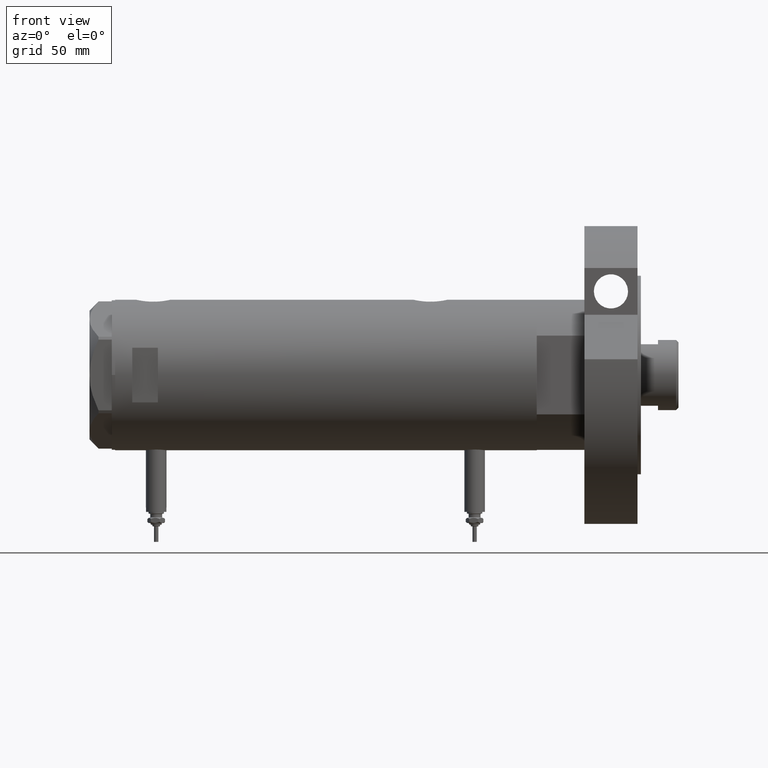
[diagram: clean part render]
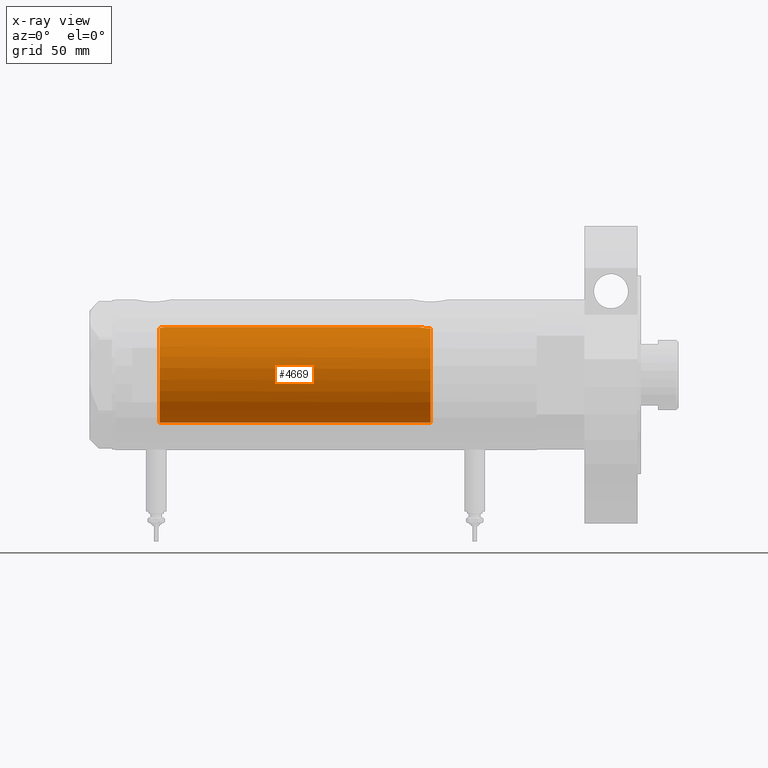
[diagram: x-ray — body ghosted, one internal face saturated and labeled with its STEP entity id]
A machine part, front view, then the same camera in x-ray: the body is ghosted and one INTERNAL B-rep face — a face not visible from any outside direction — is saturated and labeled: STEP entity #4669.
In plain terms, the highlighted cylindrical surface (partial cylindrical patch) has radius 28 mm, axis along (1, 0, -0).
Its self-contained STEP definition (entity closure, byte-faithful):
#20 = VECTOR ( 'NONE', #2699, 1000.000000000000000 ) ;
#69 = EDGE_CURVE ( 'NONE', #3580, #203, #4698, .T. ) ;
#70 = CARTESIAN_POINT ( 'NONE',  ( 27.21605408577812568, -6.579240077698937483, -61.20000000000000284 ) ) ;
#177 = DIRECTION ( 'NONE',  ( -1.000000000000000000, 0.000000000000000000, 0.000000000000000000 ) ) ;
#203 = VERTEX_POINT ( 'NONE', #4765 ) ;
#410 = CARTESIAN_POINT ( 'NONE',  ( 27.43032278742161623, -5.620674311437143800, -57.67201933177630480 ) ) ;
#519 = ORIENTED_EDGE ( 'NONE', *, *, #3233, .F. ) ;
#797 = CYLINDRICAL_SURFACE ( 'NONE', #6104, 28.00000000000000000 ) ;
#906 = CARTESIAN_POINT ( 'NONE',  ( 28.00000000000001066, -0.5413643627070152675, 94.32000000000002160 ) ) ;
#912 = CARTESIAN_POINT ( 'NONE',  ( 27.36461315879794043, -5.931995402771976345, -58.24427370164930551 ) ) ;
#949 = CARTESIAN_POINT ( 'NONE',  ( 27.92172852149584727, -2.107204279616225140, 94.66075932795374115 ) ) ;
#986 = CARTESIAN_POINT ( 'NONE',  ( 27.59002303441815229, -4.790793940098342141, 96.35816176521461784 ) ) ;
#993 = CARTESIAN_POINT ( 'NONE',  ( 27.94978721344213568, -1.729827962054681922, -54.73650615356604021 ) ) ;
#1136 = ORIENTED_EDGE ( 'NONE', *, *, #69, .T. ) ;
#1421 = CARTESIAN_POINT ( 'NONE',  ( 27.99747352180818538, -0.4347571716796903019, -54.53072531013187074 ) ) ;
#1462 = CARTESIAN_POINT ( 'NONE',  ( 28.00000000000000000, 3.429011037612589276E-15, 123.2000000000000028 ) ) ;
#1574 = LINE ( 'NONE', #1462, #6039 ) ;
#1661 = EDGE_CURVE ( 'NONE', #6990, #2586, #1574, .T. ) ;
#1871 = ORIENTED_EDGE ( 'NONE', *, *, #1661, .T. ) ;
#1969 = CARTESIAN_POINT ( 'NONE',  ( 27.28993558706078915, -6.267945658363877293, -59.05080727201159618 ) ) ;
#1996 = CARTESIAN_POINT ( 'NONE',  ( 0.000000000000000000, 0.000000000000000000, 123.2000000000000028 ) ) ;
#2002 = CARTESIAN_POINT ( 'NONE',  ( 27.22359243188622457, -6.548490838374227963, -60.32326656774585416 ) ) ;
#2038 = CARTESIAN_POINT ( 'NONE',  ( 27.80238224209237430, -3.326386449198543538, -55.41852099557871014 ) ) ;
#2115 = CARTESIAN_POINT ( 'NONE',  ( 28.00000000000000000, 8.058211040235281960E-16, -54.52000000000001023 ) ) ;
#2142 = VERTEX_POINT ( 'NONE', #7224 ) ;
#2149 = CARTESIAN_POINT ( 'NONE',  ( 27.68450581507584474, -4.196237264393388067, 95.82467802964416137 ) ) ;
#2305 = B_SPLINE_CURVE_WITH_KNOTS ( 'NONE', 3,
 ( #4946, #906, #3754, #6164, #949, #3158, #6687, #5058, #6653, #2710, #2149, #986, #3266, #6091 ),
 .UNSPECIFIED., .F., .F.,
 ( 4, 2, 2, 2, 2, 2, 4 ),
 ( 0.000000000000000000, 0.001600622945448065652, 0.002400934418172098045, 0.003201245890896130437, 0.004001557363620162830, 0.004801868836344194355, 0.006402491781792285161 ),
 .UNSPECIFIED. ) ;
#2442 = CARTESIAN_POINT ( 'NONE',  ( -28.00000000000000000, 0.000000000000000000, 97.20000000000000284 ) ) ;
#2586 = VERTEX_POINT ( 'NONE', #5318 ) ;
#2604 = CARTESIAN_POINT ( 'NONE',  ( 27.84562549742226523, -2.942523713096117710, -55.21055141078907269 ) ) ;
#2699 = DIRECTION ( 'NONE',  ( -0.000000000000000000, -0.000000000000000000, -1.000000000000000000 ) ) ;
#2710 = CARTESIAN_POINT ( 'NONE',  ( 27.71590503262370930, -3.984646725731645578, 95.65688566206239329 ) ) ;
#2717 = CARTESIAN_POINT ( 'NONE',  ( 27.55308463769899774, -4.992385646466217075, -56.79156508565561978 ) ) ;
#3130 = CARTESIAN_POINT ( 'NONE',  ( -28.00000000000000000, 0.000000000000000000, -61.20000000000000284 ) ) ;
#3158 = CARTESIAN_POINT ( 'NONE',  ( 27.87937907436173646, -2.608343522657388114, 94.85310177797239817 ) ) ;
#3203 = VERTEX_POINT ( 'NONE', #3130 ) ;
#3210 = DIRECTION ( 'NONE',  ( -1.000000000000000000, 0.000000000000000000, 0.000000000000000000 ) ) ;
#3220 = ORIENTED_EDGE ( 'NONE', *, *, #5504, .T. ) ;
#3233 = EDGE_CURVE ( 'NONE', #2142, #2586, #4212, .T. ) ;
#3235 = CARTESIAN_POINT ( 'NONE',  ( 27.65700784474207552, -4.380217411398919403, -56.17047453774085852 ) ) ;
#3266 = CARTESIAN_POINT ( 'NONE',  ( 27.52591771332015114, -5.139864392033250517, 96.75689419952075809 ) ) ;
#3353 = ORIENTED_EDGE ( 'NONE', *, *, #4824, .F. ) ;
#3426 = CARTESIAN_POINT ( 'NONE',  ( 0.000000000000000000, 0.000000000000000000, 97.20000000000000284 ) ) ;
#3497 = DIRECTION ( 'NONE',  ( 1.000000000000000000, 0.000000000000000000, 0.000000000000000000 ) ) ;
#3528 = FACE_OUTER_BOUND ( 'NONE', #3679, .T. ) ;
#3562 = CARTESIAN_POINT ( 'NONE',  ( 28.00000000000000000, 0.000000000000000000, 94.32000000000000739 ) ) ;
#3580 = VERTEX_POINT ( 'NONE', #2442 ) ;
#3679 = EDGE_LOOP ( 'NONE', ( #3353, #1871, #519, #3220, #4191, #1136 ) ) ;
#3696 = DIRECTION ( 'NONE',  ( 0.000000000000000000, 0.000000000000000000, -1.000000000000000000 ) ) ;
#3754 = CARTESIAN_POINT ( 'NONE',  ( 27.98432695902670631, -1.071102777755447377, 94.38580344277589518 ) ) ;
#4191 = ORIENTED_EDGE ( 'NONE', *, *, #6410, .F. ) ;
#4212 = B_SPLINE_CURVE_WITH_KNOTS ( 'NONE', 3,
 ( #70, #7117, #2002, #4768, #1969, #6772, #912, #4369, #410, #4953, #2717, #3235, #7233, #5066, #2038, #2604, #6619, #4337, #993, #6657, #4988, #1421, #4453, #2115 ),
 .UNSPECIFIED., .F., .F.,
 ( 4, 2, 2, 2, 2, 2, 2, 2, 2, 2, 2, 4 ),
 ( 0.01022506235776657162, 0.01152748911132702239, 0.01282991586488747143, 0.01348112924166769769, 0.01413234261844792047, 0.01543476937200837125, 0.01673719612556882202, 0.01738840950234904481, 0.01803962287912927107, 0.01934204963268972011, 0.01999326300946994983, 0.02064447638625017609 ),
 .UNSPECIFIED. ) ;
#4337 = CARTESIAN_POINT ( 'NONE',  ( 27.92072186409136236, -2.143620579020478090, -54.86381653969048955 ) ) ;
#4369 = CARTESIAN_POINT ( 'NONE',  ( 27.40754191563011588, -5.730381220489944027, -57.85863096555547713 ) ) ;
#4453 = CARTESIAN_POINT ( 'NONE',  ( 27.99999999999999645, -0.2171842281426351329, -54.52000000000000313 ) ) ;
#4529 = AXIS2_PLACEMENT_3D ( 'NONE', #6000, #3696, #3210 ) ;
#4669 = ADVANCED_FACE ( 'NONE', ( #3528 ), #797, .F. ) ;
#4698 = CIRCLE ( 'NONE', #5300, 28.00000000000000000 ) ;
#4765 = CARTESIAN_POINT ( 'NONE',  ( 27.46622653369042411, -5.441176343402230664, 97.20000000000000284 ) ) ;
#4768 = CARTESIAN_POINT ( 'NONE',  ( 27.26146154097650154, -6.389008671741138734, -59.46702257288441729 ) ) ;
#4824 = EDGE_CURVE ( 'NONE', #6990, #203, #2305, .T. ) ;
#4842 = DIRECTION ( 'NONE',  ( -0.000000000000000000, -0.000000000000000000, -1.000000000000000000 ) ) ;
#4946 = CARTESIAN_POINT ( 'NONE',  ( 28.00000000000000000, 0.000000000000000000, 94.32000000000000739 ) ) ;
#4953 = CARTESIAN_POINT ( 'NONE',  ( 27.50152613123828260, -5.265397630035327126, -57.13030070339349464 ) ) ;
#4988 = CARTESIAN_POINT ( 'NONE',  ( 27.98730817101646551, -0.8707001454186197309, -54.57418472479973559 ) ) ;
#5058 = CARTESIAN_POINT ( 'NONE',  ( 27.80347162683809259, -3.320043793664065657, 95.21279742576763283 ) ) ;
#5066 = CARTESIAN_POINT ( 'NONE',  ( 27.77950496257090762, -3.511644525604265432, -55.53121142391831455 ) ) ;
#5219 = DIRECTION ( 'NONE',  ( 0.000000000000000000, 0.000000000000000000, 1.000000000000000000 ) ) ;
#5300 = AXIS2_PLACEMENT_3D ( 'NONE', #3426, #5219, #3497 ) ;
#5318 = CARTESIAN_POINT ( 'NONE',  ( 28.00000000000000000, 8.058211040235281960E-16, -54.52000000000001023 ) ) ;
#5504 = EDGE_CURVE ( 'NONE', #2142, #3203, #5995, .T. ) ;
#5995 = CIRCLE ( 'NONE', #4529, 28.00000000000000000 ) ;
#6000 = CARTESIAN_POINT ( 'NONE',  ( 0.000000000000000000, 0.000000000000000000, -61.20000000000000284 ) ) ;
#6039 = VECTOR ( 'NONE', #6200, 1000.000000000000000 ) ;
#6091 = CARTESIAN_POINT ( 'NONE',  ( 27.46622653369042411, -5.441176343402230664, 97.20000000000000284 ) ) ;
#6104 = AXIS2_PLACEMENT_3D ( 'NONE', #1996, #4842, #177 ) ;
#6164 = CARTESIAN_POINT ( 'NONE',  ( 27.94009016578284132, -1.849003963078879931, 94.57947875320516573 ) ) ;
#6200 = DIRECTION ( 'NONE',  ( -0.000000000000000000, -0.000000000000000000, -1.000000000000000000 ) ) ;
#6410 = EDGE_CURVE ( 'NONE', #3580, #3203, #7251, .T. ) ;
#6619 = CARTESIAN_POINT ( 'NONE',  ( 27.86589383012872645, -2.744524676092583437, -55.11575755532262377 ) ) ;
#6653 = CARTESIAN_POINT ( 'NONE',  ( 27.77532582369374481, -3.546840381797768949, 95.35134423525664715 ) ) ;
#6657 = CARTESIAN_POINT ( 'NONE',  ( 27.97963188585489291, -1.089002775846584337, -54.60708365738663161 ) ) ;
#6687 = CARTESIAN_POINT ( 'NONE',  ( 27.85549665828546750, -2.850794839423819393, 94.96367683698767337 ) ) ;
#6714 = CARTESIAN_POINT ( 'NONE',  ( -28.00000000000000000, 0.000000000000000000, 123.2000000000000028 ) ) ;
#6772 = CARTESIAN_POINT ( 'NONE',  ( 27.34439869716139171, -6.024183900845905271, -58.44423424753806273 ) ) ;
#6990 = VERTEX_POINT ( 'NONE', #3562 ) ;
#7117 = CARTESIAN_POINT ( 'NONE',  ( 27.21445766202535310, -6.585843933871719180, -60.76551644800678531 ) ) ;
#7224 = CARTESIAN_POINT ( 'NONE',  ( 27.21605408577812568, -6.579240077698937483, -61.20000000000000284 ) ) ;
#7233 = CARTESIAN_POINT ( 'NONE',  ( 27.70817449315709524, -4.048115514111798596, -55.89463981057747333 ) ) ;
#7251 = LINE ( 'NONE', #6714, #20 ) ;